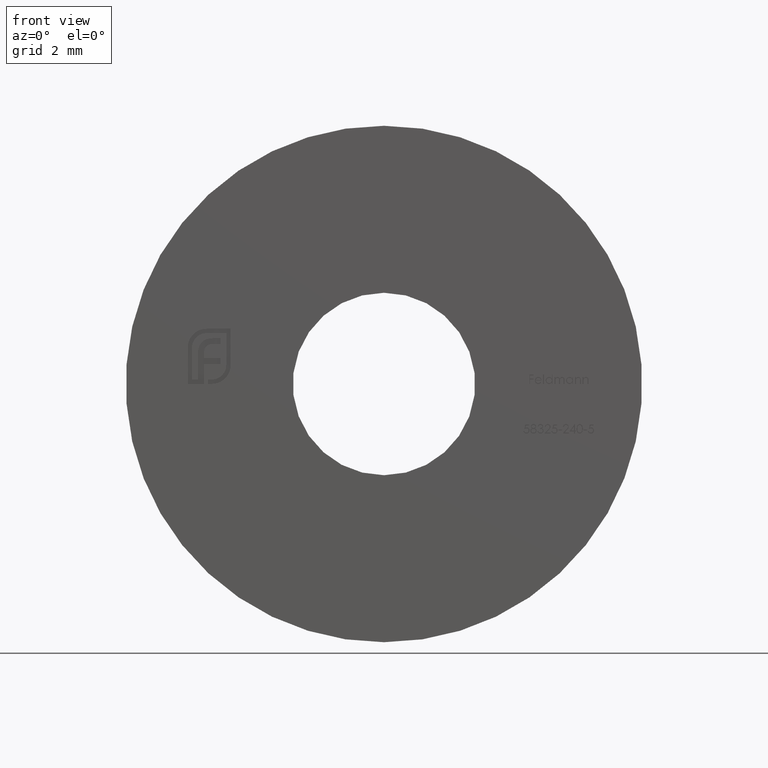
[diagram: clean part render]
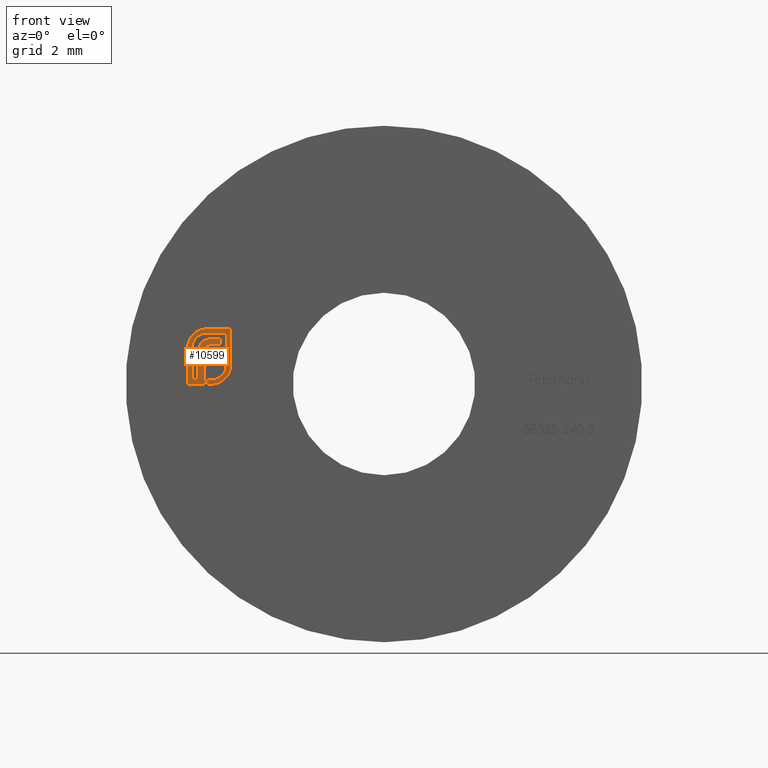
[diagram: same view with one face highlighted and labeled with its STEP entity id]
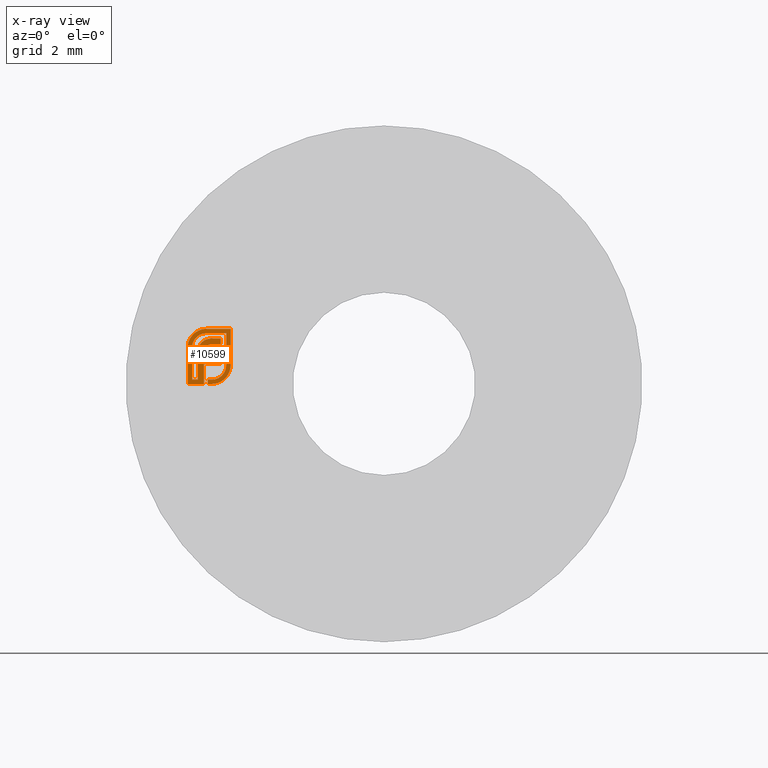
[diagram: x-ray of the same camera — body ghosted, the highlighted face saturated]
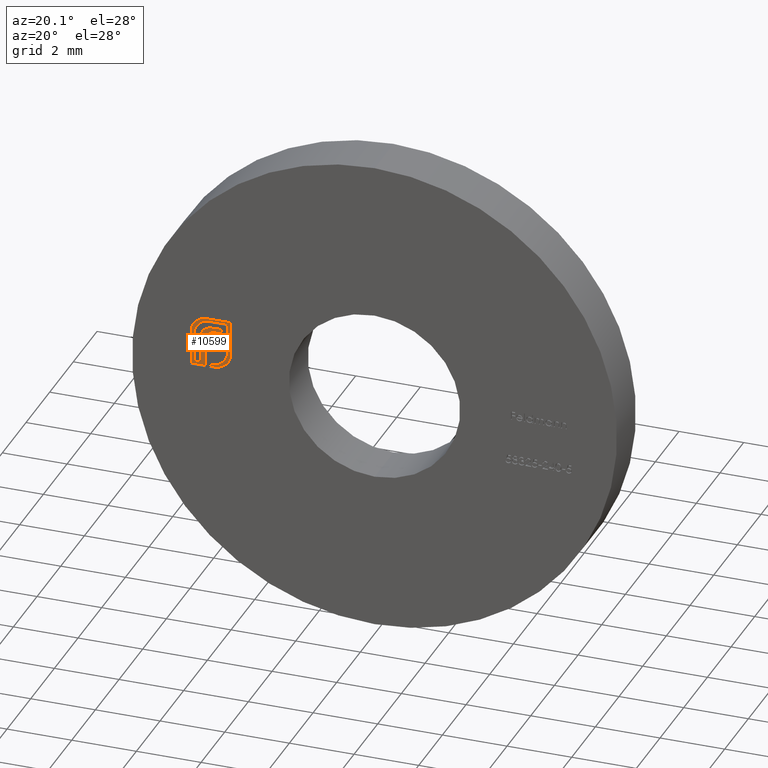
[diagram: same view with one face highlighted and labeled with its STEP entity id]
A machine part, front view. The second image highlights one B-rep face of the part: STEP entity #10599.
The next image is the same camera in x-ray: the body ghosted, the highlighted face saturated — about 0% of this face is hidden behind the body in this view.
A second angle (auxiliary view) of the same face is appended — the face is thin or edge-on in the first view.
In plain terms, the highlighted planar face has unit normal (0, -1, -0).
Its self-contained STEP definition (entity closure, byte-faithful):
#15 = DIRECTION ( 'NONE',  ( -1.000000000000000000, 0.000000000000000000, -0.000000000000000000 ) ) ;
#34 = VERTEX_POINT ( 'NONE', #3920 ) ;
#48 = CARTESIAN_POINT ( 'NONE',  ( -5.289778438918412817, -0.7000000000000000666, 1.211299028459141836 ) ) ;
#54 = ORIENTED_EDGE ( 'NONE', *, *, #14686, .F. ) ;
#75 = VERTEX_POINT ( 'NONE', #2722 ) ;
#121 = VERTEX_POINT ( 'NONE', #8012 ) ;
#127 = LINE ( 'NONE', #1314, #744 ) ;
#150 = CARTESIAN_POINT ( 'NONE',  ( -4.674883636297463063, -0.6999999999999999556, 0.1074186003092746922 ) ) ;
#186 = LINE ( 'NONE', #1586, #2623 ) ;
#216 = ORIENTED_EDGE ( 'NONE', *, *, #12218, .F. ) ;
#236 = VERTEX_POINT ( 'NONE', #5803 ) ;
#255 = VERTEX_POINT ( 'NONE', #13591 ) ;
#320 = EDGE_CURVE ( 'NONE', #10850, #12229, #10226, .T. ) ;
#393 = VERTEX_POINT ( 'NONE', #16132 ) ;
#440 = CARTESIAN_POINT ( 'NONE',  ( -5.435316693264055310, -0.6999999999999999556, 1.523333559948504279 ) ) ;
#467 = CARTESIAN_POINT ( 'NONE',  ( -5.184939207081660228, -0.6999999999999998446, 1.283653500213708387 ) ) ;
#480 = ORIENTED_EDGE ( 'NONE', *, *, #8513, .F. ) ;
#492 = CARTESIAN_POINT ( 'NONE',  ( -4.985512374280949288, -0.6999999999999997335, 0.1261960901823594161 ) ) ;
#517 = ORIENTED_EDGE ( 'NONE', *, *, #857, .F. ) ;
#522 = EDGE_CURVE ( 'NONE', #121, #4711, #7582, .T. ) ;
#528 = CARTESIAN_POINT ( 'NONE',  ( -4.457632379611204065, -0.6999999999999999556, 0.5419222793636445656 ) ) ;
#554 = CARTESIAN_POINT ( 'NONE',  ( -5.205213972911209019, -0.6999999999999996225, 1.031886629745971229 ) ) ;
#671 = CARTESIAN_POINT ( 'NONE',  ( -4.479463371907844049, -0.6999999999999999556, 0.3900684653002535751 ) ) ;
#691 = CARTESIAN_POINT ( 'NONE',  ( -5.371236155127012246, -0.7000000000000000666, 1.082394795951579836 ) ) ;
#702 = VERTEX_POINT ( 'NONE', #6258 ) ;
#744 = VECTOR ( 'NONE', #2963, 1000.000000000000000 ) ;
#771 = VECTOR ( 'NONE', #12137, 1000.000000000000000 ) ;
#786 = LINE ( 'NONE', #13267, #10723 ) ;
#823 = EDGE_CURVE ( 'NONE', #5929, #34, #2938, .T. ) ;
#842 = EDGE_CURVE ( 'NONE', #2837, #15081, #5120, .T. ) ;
#849 = CARTESIAN_POINT ( 'NONE',  ( -5.445805825038513071, -0.6999999999999999556, 1.516932920612097613 ) ) ;
#857 = EDGE_CURVE ( 'NONE', #9548, #10202, #5753, .T. ) ;
#932 = CARTESIAN_POINT ( 'NONE',  ( -5.559669394013216248, -0.7000000000000000666, 1.179011378935941323 ) ) ;
#952 = CARTESIAN_POINT ( 'NONE',  ( -5.594253941607431280, -0.6999999999999998446, 1.382098620695017210 ) ) ;
#989 = CARTESIAN_POINT ( 'NONE',  ( -5.159755617151660978, -0.6999999999999999556, 1.599441229733221004 ) ) ;
#1059 = CARTESIAN_POINT ( 'NONE',  ( -5.630085083542501145, -0.6999999999999999556, 1.323985473990325845 ) ) ;
#1062 = ORIENTED_EDGE ( 'NONE', *, *, #320, .F. ) ;
#1075 = CARTESIAN_POINT ( 'NONE',  ( -5.172717710570045924, -0.7000000000000000666, 1.599230417232471613 ) ) ;
#1126 = CARTESIAN_POINT ( 'NONE',  ( -5.057984667768796072, -0.6999999999999998446, 0.1258492497100406893 ) ) ;
#1242 = ORIENTED_EDGE ( 'NONE', *, *, #4611, .F. ) ;
#1271 = CARTESIAN_POINT ( 'NONE',  ( -5.162002925182196833, -0.6999999999999999556, 1.092191702840709988 ) ) ;
#1294 = B_SPLINE_CURVE_WITH_KNOTS ( 'NONE', 3,
 ( #11823, #5304, #9209, #13098, #1313, #10567, #15750, #15648, #7905, #2794, #5250 ),
 .UNSPECIFIED., .F., .F.,
 ( 4, 1, 1, 1, 1, 1, 1, 1, 4 ),
 ( 0.000000000000000000, 0.1255101535771534771, 0.2499629154941262477, 0.3729415475394176616, 0.4954949726337956606, 0.6195755186633576939, 0.7452592868548906235, 0.8712004049175032794, 1.000000000000000000 ),
 .UNSPECIFIED. ) ;
#1313 = CARTESIAN_POINT ( 'NONE',  ( -4.827313326663263737, -0.6999999999999997335, 0.02756506153526779371 ) ) ;
#1314 = CARTESIAN_POINT ( 'NONE',  ( -4.989762816841796678, -0.7000000000000000666, 0.5807686038914887661 ) ) ;
#1370 = CARTESIAN_POINT ( 'NONE',  ( -4.540140688732328123, -0.6999999999999999556, 0.2577983355029659363 ) ) ;
#1428 = CARTESIAN_POINT ( 'NONE',  ( -4.713569339138603986, -0.6999999999999999556, 0.08360693994947961116 ) ) ;
#1449 = ORIENTED_EDGE ( 'NONE', *, *, #16654, .F. ) ;
#1528 = CARTESIAN_POINT ( 'NONE',  ( -4.857653209046690179, -0.6999999999999998446, 1.161537207782977310 ) ) ;
#1586 = CARTESIAN_POINT ( 'NONE',  ( -4.808693998381432522, -0.7000000000000000666, 1.599441229733221226 ) ) ;
#1612 = VERTEX_POINT ( 'NONE', #671 ) ;
#1654 = CARTESIAN_POINT ( 'NONE',  ( -4.992953077213940105, -0.6999999999999996225, 1.325600196029595335 ) ) ;
#1731 = CARTESIAN_POINT ( 'NONE',  ( -5.323448849008137529, -0.6999999999999999556, 1.573834348125871418 ) ) ;
#1834 = LINE ( 'NONE', #13580, #4275 ) ;
#1835 = CARTESIAN_POINT ( 'NONE',  ( -4.717254778390183922, -0.7000000000000000666, 0.2374338926720715448 ) ) ;
#1883 = DIRECTION ( 'NONE',  ( -1.000000000000000000, 0.000000000000000000, 1.266417715819319016E-14 ) ) ;
#1910 = VERTEX_POINT ( 'NONE', #15490 ) ;
#1918 = LINE ( 'NONE', #13737, #11470 ) ;
#1926 = ORIENTED_EDGE ( 'NONE', *, *, #6909, .F. ) ;
#1941 = CARTESIAN_POINT ( 'NONE',  ( -5.701562880009459100, -0.6999999999999999556, 1.069516427972472927 ) ) ;
#2091 = CARTESIAN_POINT ( 'NONE',  ( -4.584566946025681489, -0.6999999999999999556, 0.5001136722652419486 ) ) ;
#2120 = CARTESIAN_POINT ( 'NONE',  ( -5.575481806332946100, -0.6999999999999999556, 1.071561235063475559 ) ) ;
#2169 = VECTOR ( 'NONE', #9169, 1000.000000000000000 ) ;
#2194 = CARTESIAN_POINT ( 'NONE',  ( -5.311609431215051913, -0.6999999999999999556, 1.577610237436581464 ) ) ;
#2247 = EDGE_CURVE ( 'NONE', #10523, #3096, #6740, .T. ) ;
#2279 = CARTESIAN_POINT ( 'NONE',  ( -4.490759304767193427, -0.6999999999999998446, 0.3550024720573106141 ) ) ;
#2490 = VERTEX_POINT ( 'NONE', #3169 ) ;
#2504 = CARTESIAN_POINT ( 'NONE',  ( -5.389703789125393385, -0.7000000000000002887, 1.022375544888747267 ) ) ;
#2558 = AXIS2_PLACEMENT_3D ( 'NONE', #16025, #8239, #10685 ) ;
#2623 = VECTOR ( 'NONE', #14532, 1000.000000000000000 ) ;
#2631 = CARTESIAN_POINT ( 'NONE',  ( -5.156017438870260428, -0.6999999999999999556, 1.097784446073585496 ) ) ;
#2666 = LINE ( 'NONE', #14921, #12219 ) ;
#2722 = CARTESIAN_POINT ( 'NONE',  ( -4.583481629321244810, -0.6999999999999999556, 0.5419222793636445656 ) ) ;
#2755 = CARTESIAN_POINT ( 'NONE',  ( -4.733088135354099002, -0.6999999999999999556, 0.07159281297280375989 ) ) ;
#2794 = CARTESIAN_POINT ( 'NONE',  ( -4.987557181371952808, -0.7000000000000001776, 0.0001150165058460374051 ) ) ;
#2818 = VECTOR ( 'NONE', #4858, 1000.000000000000000 ) ;
#2828 = CARTESIAN_POINT ( 'NONE',  ( -4.733088135354099002, -0.6999999999999999556, 0.07159281297280375989 ) ) ;
#2837 = VERTEX_POINT ( 'NONE', #4173 ) ;
#2856 = ORIENTED_EDGE ( 'NONE', *, *, #11506, .F. ) ;
#2938 = B_SPLINE_CURVE_WITH_KNOTS ( 'NONE', 3,
 ( #13347, #440, #14662, #9576, #9518, #1731, #10828 ),
 .UNSPECIFIED., .F., .F.,
 ( 4, 1, 1, 1, 4 ),
 ( 0.000000000000000000, 0.2494004055988064128, 0.4982698082868715628, 0.7477365097776036418, 1.000000000000000000 ),
 .UNSPECIFIED. ) ;
#2963 = DIRECTION ( 'NONE',  ( -1.000000000000000000, -7.617550170342183472E-15, 0.000000000000000000 ) ) ;
#3034 = LINE ( 'NONE', #7375, #15204 ) ;
#3039 = B_SPLINE_CURVE_WITH_KNOTS ( 'NONE', 3,
 ( #12293, #12402, #9643, #16066, #9746, #5901, #11113, #4598, #2091, #8503, #3219 ),
 .UNSPECIFIED., .F., .F.,
 ( 4, 1, 1, 1, 1, 1, 1, 1, 4 ),
 ( 0.000000000000000000, 0.1300684187865159269, 0.2563684206270608334, 0.3806087965304096321, 0.5030361388155298874, 0.6245546842700441248, 0.7464187435721217900, 0.8718075328738722485, 1.000000000000000000 ),
 .UNSPECIFIED. ) ;
#3059 = VERTEX_POINT ( 'NONE', #3364 ) ;
#3093 = CARTESIAN_POINT ( 'NONE',  ( -4.957840934440207015, -0.6999999999999996225, 0.1268795669436781903 ) ) ;
#3096 = VERTEX_POINT ( 'NONE', #9830 ) ;
#3169 = CARTESIAN_POINT ( 'NONE',  ( -4.936630034119828814, -0.6999999999999999556, 1.326232782020862144 ) ) ;
#3171 = CARTESIAN_POINT ( 'NONE',  ( -5.376460320096247081, -0.7000000000000000666, 1.068434446517896541 ) ) ;
#3213 = CARTESIAN_POINT ( 'NONE',  ( -5.423886615255509192, -0.6999999999999999556, 1.379267065142049775 ) ) ;
#3215 = CARTESIAN_POINT ( 'NONE',  ( -5.211044086141660259, -0.6999999999999999556, 1.015897038622937121 ) ) ;
#3219 = CARTESIAN_POINT ( 'NONE',  ( -4.583481629321244810, -0.6999999999999999556, 0.5419222793636445656 ) ) ;
#3289 = CARTESIAN_POINT ( 'NONE',  ( -5.317605999915277160, -0.6999999999999998446, 1.181912176841358741 ) ) ;
#3314 = CARTESIAN_POINT ( 'NONE',  ( -5.697385044406333421, -0.7000000000000001776, 1.128473651574875447 ) ) ;
#3343 = CARTESIAN_POINT ( 'NONE',  ( -5.159755617151660978, -0.6999999999999999556, 1.473591980023180481 ) ) ;
#3364 = CARTESIAN_POINT ( 'NONE',  ( -4.748177203559129644, -0.6999999999999999556, 0.5807686038914887661 ) ) ;
#3367 = CARTESIAN_POINT ( 'NONE',  ( -5.674112834980038045, -0.7000000000000000666, 1.229760282681161554 ) ) ;
#3369 = CARTESIAN_POINT ( 'NONE',  ( -4.476044004610622906, -0.6999999999999999556, 0.4024343631681113198 ) ) ;
#3382 = CARTESIAN_POINT ( 'NONE',  ( -4.748177203559129644, -0.6999999999999999556, 1.326232782020862144 ) ) ;
#3396 = EDGE_CURVE ( 'NONE', #9545, #75, #3039, .T. ) ;
#3440 = LINE ( 'NONE', #12467, #15000 ) ;
#3452 = CARTESIAN_POINT ( 'NONE',  ( -5.701677896515304766, -0.6999999999999999556, 0.000000000000000000 ) ) ;
#3501 = ORIENTED_EDGE ( 'NONE', *, *, #10378, .F. ) ;
#3549 = CARTESIAN_POINT ( 'NONE',  ( -4.707083571000748812, -0.6999999999999999556, 0.2472038833590084750 ) ) ;
#3576 = VECTOR ( 'NONE', #15, 1000.000000000000000 ) ;
#3584 = CARTESIAN_POINT ( 'NONE',  ( -5.545787971748742606, -0.6999999999999999556, 1.216368892259450663 ) ) ;
#3648 = LINE ( 'NONE', #5405, #15995 ) ;
#3686 = VERTEX_POINT ( 'NONE', #5315 ) ;
#3721 = VECTOR ( 'NONE', #7801, 1000.000000000000000 ) ;
#3730 = VERTEX_POINT ( 'NONE', #989 ) ;
#3800 = ORIENTED_EDGE ( 'NONE', *, *, #6184, .F. ) ;
#3915 = ORIENTED_EDGE ( 'NONE', *, *, #2247, .F. ) ;
#3920 = CARTESIAN_POINT ( 'NONE',  ( -5.311609431215051913, -0.6999999999999999556, 1.577610237436581464 ) ) ;
#3925 = CARTESIAN_POINT ( 'NONE',  ( -5.053851430378697884, -0.7000000000000002887, 1.152579111626905739 ) ) ;
#3952 = VERTEX_POINT ( 'NONE', #6878 ) ;
#4034 = B_SPLINE_CURVE_WITH_KNOTS ( 'NONE', 3,
 ( #1059, #7515, #952, #8774, #10080, #12505, #10024 ),
 .UNSPECIFIED., .F., .F.,
 ( 4, 1, 1, 1, 4 ),
 ( 0.000000000000000000, 0.2548261097762411498, 0.5042880443381970723, 0.7513476757168002784, 1.000000000000000000 ),
 .UNSPECIFIED. ) ;
#4113 = CARTESIAN_POINT ( 'NONE',  ( -5.289778438918412817, -0.7000000000000000666, 1.211299028459141836 ) ) ;
#4160 = DIRECTION ( 'NONE',  ( 1.000000000000000000, 0.000000000000000000, 0.000000000000000000 ) ) ;
#4173 = CARTESIAN_POINT ( 'NONE',  ( -5.214012053888897213, -0.6999999999999999556, 1.007757129693412468 ) ) ;
#4177 = DIRECTION ( 'NONE',  ( 1.000000000000000000, 0.000000000000000000, 0.000000000000000000 ) ) ;
#4244 = VECTOR ( 'NONE', #6459, 1000.000000000000000 ) ;
#4275 = VECTOR ( 'NONE', #7418, 1000.000000000000000 ) ;
#4279 = CARTESIAN_POINT ( 'NONE',  ( -5.096350282335944115, -0.6999999999999999556, 1.311784634543276873 ) ) ;
#4289 = CARTESIAN_POINT ( 'NONE',  ( -4.540140688732328123, -0.6999999999999999556, 0.2577983355029659363 ) ) ;
#4304 = CARTESIAN_POINT ( 'NONE',  ( -5.490270419642698130, -0.6999999999999998446, 0.1258492497100407170 ) ) ;
#4402 = CARTESIAN_POINT ( 'NONE',  ( -4.917249010705962320, -0.7000000000000000666, 0.1329877451365502061 ) ) ;
#4462 = CARTESIAN_POINT ( 'NONE',  ( -5.173794164491057224, -0.6999999999999998446, 1.473227550997893598 ) ) ;
#4472 = CARTESIAN_POINT ( 'NONE',  ( -5.298968547939801432, -0.7000000000000000666, 1.201593960516133652 ) ) ;
#4512 = ORIENTED_EDGE ( 'NONE', *, *, #842, .F. ) ;
#4531 = CARTESIAN_POINT ( 'NONE',  ( -5.454474013156296763, -0.6999999999999999556, 1.349990038343676257 ) ) ;
#4563 = CARTESIAN_POINT ( 'NONE',  ( -5.692297052289776005, -0.6999999999999997335, 1.163099442215776103 ) ) ;
#4598 = CARTESIAN_POINT ( 'NONE',  ( -4.590460099860104393, -0.6999999999999999556, 0.4593392032730171937 ) ) ;
#4611 = EDGE_CURVE ( 'NONE', #1612, #10282, #10695, .T. ) ;
#4653 = DIRECTION ( 'NONE',  ( 0.000000000000000000, -1.350845563540643396E-14, 1.000000000000000000 ) ) ;
#4711 = VERTEX_POINT ( 'NONE', #6049 ) ;
#4723 = ORIENTED_EDGE ( 'NONE', *, *, #10116, .F. ) ;
#4733 = CARTESIAN_POINT ( 'NONE',  ( -5.231085321758122575, -0.7000000000000000666, 0.9239734979632048262 ) ) ;
#4738 = CARTESIAN_POINT ( 'NONE',  ( -5.575828646805264022, -0.6999999999999999556, 1.057518950369576549 ) ) ;
#4787 = EDGE_CURVE ( 'NONE', #4711, #3686, #14479, .T. ) ;
#4819 = EDGE_CURVE ( 'NONE', #255, #9545, #5599, .T. ) ;
#4858 = DIRECTION ( 'NONE',  ( -5.707798155805711639E-14, 0.000000000000000000, -1.000000000000000000 ) ) ;
#4972 = EDGE_CURVE ( 'NONE', #14433, #1612, #11998, .T. ) ;
#5032 = EDGE_CURVE ( 'NONE', #14854, #7314, #2666, .T. ) ;
#5064 = CARTESIAN_POINT ( 'NONE',  ( -5.231348430124463711, -0.6999999999999999556, 0.8928233761316916040 ) ) ;
#5120 = B_SPLINE_CURVE_WITH_KNOTS ( 'NONE', 3,
 ( #15429, #15866, #5825, #14865, #4733, #12820, #5064 ),
 .UNSPECIFIED., .F., .F.,
 ( 4, 1, 1, 1, 4 ),
 ( 0.000000000000000000, 0.2296577939907745725, 0.4728894664265893000, 0.7276593582172837804, 1.000000000000000000 ),
 .UNSPECIFIED. ) ;
#5187 = CARTESIAN_POINT ( 'NONE',  ( -5.079815660065436056, -0.6999999999999999556, 1.144200831547410813 ) ) ;
#5250 = CARTESIAN_POINT ( 'NONE',  ( -4.999554658974848742, -0.6999999999999999556, 0.000000000000000000 ) ) ;
#5304 = CARTESIAN_POINT ( 'NONE',  ( -4.743300751584196284, -0.6999999999999999556, 0.06591342503123399921 ) ) ;
#5315 = CARTESIAN_POINT ( 'NONE',  ( -5.079815660065436056, -0.6999999999999999556, 1.144200831547410813 ) ) ;
#5405 = CARTESIAN_POINT ( 'NONE',  ( -4.842403618839478341, -0.6999999999999997335, 1.326232782020861922 ) ) ;
#5434 = CARTESIAN_POINT ( 'NONE',  ( -5.404712192480132238, -0.6999999999999999556, 0.1258492497100406893 ) ) ;
#5479 = ORIENTED_EDGE ( 'NONE', *, *, #3396, .F. ) ;
#5518 = ORIENTED_EDGE ( 'NONE', *, *, #16163, .F. ) ;
#5525 = ORIENTED_EDGE ( 'NONE', *, *, #9250, .F. ) ;
#5541 = ORIENTED_EDGE ( 'NONE', *, *, #4819, .F. ) ;
#5587 = DIRECTION ( 'NONE',  ( 8.531656190782985480E-14, 1.066457023847873185E-14, -1.000000000000000000 ) ) ;
#5597 = CARTESIAN_POINT ( 'NONE',  ( -5.142419240916093592, -0.6999999999999999556, 1.297980909636975655 ) ) ;
#5599 = B_SPLINE_CURVE_WITH_KNOTS ( 'NONE', 3,
 ( #8257, #492, #3093, #4402, #13459, #12235, #16053, #13516, #9630, #1835, #3549 ),
 .UNSPECIFIED., .F., .F.,
 ( 4, 1, 1, 1, 1, 1, 1, 1, 4 ),
 ( 0.000000000000000000, 0.1294153089051528205, 0.2550231684446454539, 0.3778159505448303590, 0.4995652956731370109, 0.6218454371786017454, 0.7445549121012178251, 0.8700852119793848205, 1.000000000000000000 ),
 .UNSPECIFIED. ) ;
#5634 = CARTESIAN_POINT ( 'NONE',  ( -5.454474013156296763, -0.6999999999999999556, 1.349990038343676257 ) ) ;
#5649 = CARTESIAN_POINT ( 'NONE',  ( -4.955804379730009757, -0.6999999999999998446, 1.326017427491732015 ) ) ;
#5707 = B_SPLINE_CURVE_WITH_KNOTS ( 'NONE', 3,
 ( #9163, #13005, #10583, #7817, #9099, #2631, #1271 ),
 .UNSPECIFIED., .F., .F.,
 ( 4, 1, 1, 1, 4 ),
 ( 0.000000000000000000, 0.2524546485597168877, 0.5031396088336632655, 0.7494862726423848764, 1.000000000000000000 ),
 .UNSPECIFIED. ) ;
#5753 = LINE ( 'NONE', #4304, #13023 ) ;
#5794 = CARTESIAN_POINT ( 'NONE',  ( -5.281596629677220989, -0.6999999999999996225, 1.456932225505422673 ) ) ;
#5803 = CARTESIAN_POINT ( 'NONE',  ( -5.142419240916093592, -0.6999999999999999556, 1.297980909636975655 ) ) ;
#5825 = CARTESIAN_POINT ( 'NONE',  ( -5.222551012260934655, -0.6999999999999998446, 0.9817358449586573999 ) ) ;
#5837 = CARTESIAN_POINT ( 'NONE',  ( -5.231348430124463711, -0.6999999999999999556, 0.7432168700988371901 ) ) ;
#5874 = CARTESIAN_POINT ( 'NONE',  ( -4.469232291559656289, -0.6999999999999999556, 0.4270684374197538657 ) ) ;
#5901 = CARTESIAN_POINT ( 'NONE',  ( -4.613746932003213175, -0.6999999999999999556, 0.3823502978803169361 ) ) ;
#5907 = CARTESIAN_POINT ( 'NONE',  ( -5.361020809703639145, -0.6999999999999997335, 1.109692898621747137 ) ) ;
#5929 = VERTEX_POINT ( 'NONE', #849 ) ;
#5930 = CARTESIAN_POINT ( 'NONE',  ( -4.458262452218553662, -0.6999999999999996225, 0.5031814078887971720 ) ) ;
#5964 = CARTESIAN_POINT ( 'NONE',  ( -5.444178787458388236, -0.7000000000000000666, 1.359844214224561920 ) ) ;
#5997 = CARTESIAN_POINT ( 'NONE',  ( -4.505171492156288870, -0.7000000000000000666, 0.3213677949570484804 ) ) ;
#6049 = CARTESIAN_POINT ( 'NONE',  ( -4.967129214534251602, -0.6999999999999999556, 1.161537207782977532 ) ) ;
#6051 = CARTESIAN_POINT ( 'NONE',  ( -5.529020143618221361, -0.6999999999999998446, 1.252509509407138566 ) ) ;
#6108 = CARTESIAN_POINT ( 'NONE',  ( -4.748177203559128756, -0.7000000000000000666, 1.243884994901919727 ) ) ;
#6184 = EDGE_CURVE ( 'NONE', #7314, #9278, #6797, .T. ) ;
#6185 = EDGE_CURVE ( 'NONE', #1910, #11542, #1834, .T. ) ;
#6258 = CARTESIAN_POINT ( 'NONE',  ( -5.575828646805264022, -0.6999999999999999556, 1.057518950369576549 ) ) ;
#6426 = DIRECTION ( 'NONE',  ( 0.000000000000000000, 0.000000000000000000, 1.000000000000000000 ) ) ;
#6459 = DIRECTION ( 'NONE',  ( 0.000000000000000000, 0.000000000000000000, 1.000000000000000000 ) ) ;
#6639 = ORIENTED_EDGE ( 'NONE', *, *, #6992, .F. ) ;
#6680 = B_SPLINE_CURVE_WITH_KNOTS ( 'NONE', 3,
 ( #2194, #7428, #8888, #12687, #8680, #1075, #16474 ),
 .UNSPECIFIED., .F., .F.,
 ( 4, 1, 1, 1, 4 ),
 ( 0.000000000000000000, 0.2498987543963744062, 0.4978226843676620827, 0.7474950417136813074, 1.000000000000000000 ),
 .UNSPECIFIED. ) ;
#6717 = EDGE_CURVE ( 'NONE', #3096, #3952, #3034, .T. ) ;
#6740 = LINE ( 'NONE', #14000, #11596 ) ;
#6797 = B_SPLINE_CURVE_WITH_KNOTS ( 'NONE', 3,
 ( #3343, #4462, #11108, #13523, #5794, #8385, #7083, #16122, #3213, #5964, #4531 ),
 .UNSPECIFIED., .F., .F.,
 ( 4, 1, 1, 1, 1, 1, 1, 1, 4 ),
 ( 0.000000000000000000, 0.1281924671261265580, 0.2535812564278782100, 0.3754453157299565969, 0.4969638611844700571, 0.6193912034695919777, 0.7436315793729405543, 0.8699315812134853498, 1.000000000000000000 ),
 .UNSPECIFIED. ) ;
#6829 = DIRECTION ( 'NONE',  ( 0.000000000000000000, -1.164522037535058187E-14, -1.000000000000000000 ) ) ;
#6878 = CARTESIAN_POINT ( 'NONE',  ( -5.116414676562744290, -0.6999999999999999556, 0.1258492497100406893 ) ) ;
#6909 = EDGE_CURVE ( 'NONE', #3686, #15291, #5707, .T. ) ;
#6934 = CARTESIAN_POINT ( 'NONE',  ( -5.142419240916093592, -0.6999999999999999556, 1.297980909636975655 ) ) ;
#6992 = EDGE_CURVE ( 'NONE', #10282, #7361, #12946, .T. ) ;
#6999 = CARTESIAN_POINT ( 'NONE',  ( -5.259298898095822850, -0.7000000000000000666, 1.240004344986883833 ) ) ;
#7055 = LINE ( 'NONE', #16139, #771 ) ;
#7083 = CARTESIAN_POINT ( 'NONE',  ( -5.355841343482775407, -0.6999999999999998446, 1.426051892757331352 ) ) ;
#7154 = CARTESIAN_POINT ( 'NONE',  ( -5.404712192480132238, -0.6999999999999999556, 0.8645715037478048925 ) ) ;
#7273 = CARTESIAN_POINT ( 'NONE',  ( -4.479463371907844049, -0.6999999999999999556, 0.3900684653002535751 ) ) ;
#7279 = CARTESIAN_POINT ( 'NONE',  ( -4.483242496549886269, -0.6999999999999999556, 0.3783369190161068318 ) ) ;
#7292 = CARTESIAN_POINT ( 'NONE',  ( -4.457632379611204065, -0.7000000000000000666, 1.070681754548432840 ) ) ;
#7293 = VERTEX_POINT ( 'NONE', #12533 ) ;
#7314 = VERTEX_POINT ( 'NONE', #16719 ) ;
#7361 = VERTEX_POINT ( 'NONE', #2828 ) ;
#7375 = CARTESIAN_POINT ( 'NONE',  ( -5.116414676562744290, -0.6999999999999997335, 0.06292462485502033076 ) ) ;
#7409 = EDGE_CURVE ( 'NONE', #2490, #15544, #3648, .T. ) ;
#7418 = DIRECTION ( 'NONE',  ( 6.484058704995057757E-14, -8.105073381243822196E-15, -1.000000000000000000 ) ) ;
#7428 = CARTESIAN_POINT ( 'NONE',  ( -5.299243533347195445, -0.7000000000000000666, 1.581029604733803051 ) ) ;
#7515 = CARTESIAN_POINT ( 'NONE',  ( -5.618056970960664032, -0.6999999999999998446, 1.343493405730694867 ) ) ;
#7545 = ORIENTED_EDGE ( 'NONE', *, *, #9128, .F. ) ;
#7582 = LINE ( 'NONE', #1528, #3721 ) ;
#7585 = VERTEX_POINT ( 'NONE', #7154 ) ;
#7617 = CARTESIAN_POINT ( 'NONE',  ( -4.967129214534251602, -0.6999999999999999556, 1.161537207782977532 ) ) ;
#7750 = EDGE_CURVE ( 'NONE', #8908, #9657, #3440, .T. ) ;
#7795 = ORIENTED_EDGE ( 'NONE', *, *, #4972, .F. ) ;
#7801 = DIRECTION ( 'NONE',  ( -1.000000000000000000, 1.608149480405708171E-14, -1.608149480405708171E-14 ) ) ;
#7817 = CARTESIAN_POINT ( 'NONE',  ( -5.124254717770562628, -0.6999999999999998446, 1.123169033678045325 ) ) ;
#7896 = CARTESIAN_POINT ( 'NONE',  ( -5.575828646805263134, -0.7000000000000000666, 0.5916841000398085360 ) ) ;
#7905 = CARTESIAN_POINT ( 'NONE',  ( -4.963828488758075252, -0.6999999999999999556, 0.0003424969315718466491 ) ) ;
#7919 = CARTESIAN_POINT ( 'NONE',  ( -4.552578274225762556, -0.7000000000000000666, 0.2388917981688750136 ) ) ;
#8012 = CARTESIAN_POINT ( 'NONE',  ( -4.748177203559130533, -0.7000000000000000666, 1.161537207782977754 ) ) ;
#8126 = ORIENTED_EDGE ( 'NONE', *, *, #8422, .F. ) ;
#8141 = ORIENTED_EDGE ( 'NONE', *, *, #522, .F. ) ;
#8239 = DIRECTION ( 'NONE',  ( 3.019787241149960853E-14, -1.000000000000000000, -1.092084510402302816E-13 ) ) ;
#8257 = CARTESIAN_POINT ( 'NONE',  ( -4.999554658974848742, -0.6999999999999999556, 0.1258492497100406893 ) ) ;
#8338 = ORIENTED_EDGE ( 'NONE', *, *, #11942, .F. ) ;
#8385 = CARTESIAN_POINT ( 'NONE',  ( -5.319327598634989052, -0.7000000000000001776, 1.443326677341211228 ) ) ;
#8422 = EDGE_CURVE ( 'NONE', #15544, #121, #11955, .T. ) ;
#8503 = CARTESIAN_POINT ( 'NONE',  ( -4.583846058346529695, -0.6999999999999998446, 0.5278837320242464326 ) ) ;
#8513 = EDGE_CURVE ( 'NONE', #15291, #2837, #13965, .T. ) ;
#8601 = CARTESIAN_POINT ( 'NONE',  ( -5.568690151378755893, -0.6999999999999999556, 1.139824598638464526 ) ) ;
#8631 = ORIENTED_EDGE ( 'NONE', *, *, #13669, .F. ) ;
#8675 = EDGE_CURVE ( 'NONE', #702, #9548, #12375, .T. ) ;
#8680 = CARTESIAN_POINT ( 'NONE',  ( -5.198496488626508594, -0.6999999999999999556, 1.598811157125869853 ) ) ;
#8686 = LINE ( 'NONE', #1126, #2169 ) ;
#8749 = CARTESIAN_POINT ( 'NONE',  ( -5.483454258255524572, -0.6999999999999999556, 1.319819683780802055 ) ) ;
#8772 = ORIENTED_EDGE ( 'NONE', *, *, #16258, .F. ) ;
#8774 = CARTESIAN_POINT ( 'NONE',  ( -5.550166541872976644, -0.6999999999999997335, 1.433450223188046380 ) ) ;
#8888 = CARTESIAN_POINT ( 'NONE',  ( -5.274609459095552566, -0.7000000000000000666, 1.587841317784768114 ) ) ;
#8908 = VERTEX_POINT ( 'NONE', #5837 ) ;
#9099 = CARTESIAN_POINT ( 'NONE',  ( -5.144146029260740605, -0.7000000000000000666, 1.108876902441904067 ) ) ;
#9128 = EDGE_CURVE ( 'NONE', #236, #2490, #12226, .T. ) ;
#9163 = CARTESIAN_POINT ( 'NONE',  ( -5.079815660065436056, -0.6999999999999999556, 1.144200831547410813 ) ) ;
#9169 = DIRECTION ( 'NONE',  ( 1.000000000000000000, -1.489903195081494132E-14, 0.000000000000000000 ) ) ;
#9209 = CARTESIAN_POINT ( 'NONE',  ( -4.763639945306310075, -0.7000000000000000666, 0.05460249657137608570 ) ) ;
#9250 = EDGE_CURVE ( 'NONE', #3730, #393, #186, .T. ) ;
#9278 = VERTEX_POINT ( 'NONE', #13155 ) ;
#9305 = DIRECTION ( 'NONE',  ( 0.000000000000000000, 3.926876638199530135E-15, -1.000000000000000000 ) ) ;
#9445 = CARTESIAN_POINT ( 'NONE',  ( -5.127406853226308847, -0.7000000000000000666, 1.302479098357608445 ) ) ;
#9518 = CARTESIAN_POINT ( 'NONE',  ( -5.346996423624902128, -0.7000000000000001776, 1.566324431942282436 ) ) ;
#9545 = VERTEX_POINT ( 'NONE', #9851 ) ;
#9548 = VERTEX_POINT ( 'NONE', #14929 ) ;
#9564 = ORIENTED_EDGE ( 'NONE', *, *, #16080, .F. ) ;
#9576 = CARTESIAN_POINT ( 'NONE',  ( -5.381020339068992797, -0.7000000000000000666, 1.551828885681314052 ) ) ;
#9630 = CARTESIAN_POINT ( 'NONE',  ( -4.737253925563623014, -0.7000000000000000666, 0.2182236382597804170 ) ) ;
#9640 = CARTESIAN_POINT ( 'NONE',  ( -5.178956643076359612, -0.6999999999999996225, 1.074381670838818081 ) ) ;
#9643 = CARTESIAN_POINT ( 'NONE',  ( -4.677806544202375072, -0.6999999999999999556, 0.2777912812597954639 ) ) ;
#9657 = VERTEX_POINT ( 'NONE', #16433 ) ;
#9717 = CARTESIAN_POINT ( 'NONE',  ( -5.701677896515304766, -0.6999999999999999556, 1.057518950369576549 ) ) ;
#9746 = CARTESIAN_POINT ( 'NONE',  ( -4.631021716587094161, -0.6999999999999998446, 0.3458365530325296366 ) ) ;
#9830 = CARTESIAN_POINT ( 'NONE',  ( -5.116414676562744290, -0.6999999999999999556, 0.000000000000000000 ) ) ;
#9851 = CARTESIAN_POINT ( 'NONE',  ( -4.707083571000748812, -0.6999999999999999556, 0.2472038833590084750 ) ) ;
#9872 = LINE ( 'NONE', #15576, #3576 ) ;
#9890 = CARTESIAN_POINT ( 'NONE',  ( -4.520967592918860412, -0.6999999999999998446, 0.2885932513837417002 ) ) ;
#9894 = ORIENTED_EDGE ( 'NONE', *, *, #4787, .F. ) ;
#9970 = ORIENTED_EDGE ( 'NONE', *, *, #6185, .F. ) ;
#9980 = ORIENTED_EDGE ( 'NONE', *, *, #8675, .F. ) ;
#9998 = CARTESIAN_POINT ( 'NONE',  ( -5.404712192480132238, -0.6999999999999999556, 0.8645715037478048925 ) ) ;
#10024 = CARTESIAN_POINT ( 'NONE',  ( -5.445805825038513071, -0.6999999999999999556, 1.516932920612097613 ) ) ;
#10059 = CARTESIAN_POINT ( 'NONE',  ( -5.574798329571626354, -0.6999999999999999556, 1.099232674904216722 ) ) ;
#10065 = DIRECTION ( 'NONE',  ( 0.000000000000000000, 0.000000000000000000, -1.000000000000000000 ) ) ;
#10080 = CARTESIAN_POINT ( 'NONE',  ( -5.501425881498483328, -0.7000000000000000666, 1.479653096829023351 ) ) ;
#10106 = DIRECTION ( 'NONE',  ( -1.000000000000000000, -1.489903195081138829E-14, -0.000000000000000000 ) ) ;
#10116 = EDGE_CURVE ( 'NONE', #75, #14854, #15970, .T. ) ;
#10135 = VECTOR ( 'NONE', #10065, 1000.000000000000000 ) ;
#10139 = B_SPLINE_CURVE_WITH_KNOTS ( 'NONE', 3,
 ( #5634, #15138, #8749, #12489, #6051, #3584, #932, #8601, #10059, #2120, #4738 ),
 .UNSPECIFIED., .F., .F.,
 ( 4, 1, 1, 1, 1, 1, 1, 1, 4 ),
 ( 0.000000000000000000, 0.1299147880206164840, 0.2554450878987845619, 0.3781545628213986987, 0.5004347043268636552, 0.6221840494551688083, 0.7449768315553536580, 0.8705846910948467077, 1.000000000000000000 ),
 .UNSPECIFIED. ) ;
#10202 = VERTEX_POINT ( 'NONE', #5434 ) ;
#10226 = B_SPLINE_CURVE_WITH_KNOTS ( 'NONE', 3,
 ( #3171, #691, #5907, #12254, #3289, #4472, #14957 ),
 .UNSPECIFIED., .F., .F.,
 ( 4, 1, 1, 1, 4 ),
 ( 0.000000000000000000, 0.2650465622674555988, 0.5182727197139306297, 0.7624607574988784275, 1.000000000000000000 ),
 .UNSPECIFIED. ) ;
#10231 = CARTESIAN_POINT ( 'NONE',  ( -5.398473847680424598, -0.6999999999999998446, 0.9731547829876808775 ) ) ;
#10282 = VERTEX_POINT ( 'NONE', #4289 ) ;
#10378 = EDGE_CURVE ( 'NONE', #393, #14433, #13767, .T. ) ;
#10382 = CARTESIAN_POINT ( 'NONE',  ( -5.026261722086799111, -0.6999999999999999556, 1.157739626296802493 ) ) ;
#10523 = VERTEX_POINT ( 'NONE', #15700 ) ;
#10524 = LINE ( 'NONE', #15516, #10939 ) ;
#10558 = EDGE_CURVE ( 'NONE', #9657, #3059, #786, .T. ) ;
#10567 = CARTESIAN_POINT ( 'NONE',  ( -4.860277366516110753, -0.7000000000000001776, 0.01765961787323672150 ) ) ;
#10583 = CARTESIAN_POINT ( 'NONE',  ( -5.102774572488283589, -0.6999999999999998446, 1.135072335159098333 ) ) ;
#10599 = ADVANCED_FACE ( 'NONE', ( #14976 ), #15863, .T. ) ;
#10674 = EDGE_CURVE ( 'NONE', #15617, #7293, #15312, .T. ) ;
#10685 = DIRECTION ( 'NONE',  ( 0.000000000000000000, 1.092084510402302816E-13, -1.000000000000000000 ) ) ;
#10695 = B_SPLINE_CURVE_WITH_KNOTS ( 'NONE', 3,
 ( #15188, #7279, #2279, #5997, #9890, #16275, #13779 ),
 .UNSPECIFIED., .F., .F.,
 ( 4, 1, 1, 1, 4 ),
 ( 0.000000000000000000, 0.2531688454537558974, 0.5035614958825505028, 0.7514299623983482501, 1.000000000000000000 ),
 .UNSPECIFIED. ) ;
#10723 = VECTOR ( 'NONE', #5587, 1000.000000000000000 ) ;
#10771 = EDGE_CURVE ( 'NONE', #10202, #7585, #10524, .T. ) ;
#10828 = CARTESIAN_POINT ( 'NONE',  ( -5.311609431215051913, -0.6999999999999999556, 1.577610237436581464 ) ) ;
#10850 = VERTEX_POINT ( 'NONE', #15357 ) ;
#10868 = ORIENTED_EDGE ( 'NONE', *, *, #6717, .F. ) ;
#10936 = CARTESIAN_POINT ( 'NONE',  ( -5.214012053888897213, -0.6999999999999999556, 1.007757129693412468 ) ) ;
#10939 = VECTOR ( 'NONE', #6426, 1000.000000000000000 ) ;
#11032 = CARTESIAN_POINT ( 'NONE',  ( -5.661916184660610973, -0.6999999999999998446, 1.262008582096644016 ) ) ;
#11090 = CARTESIAN_POINT ( 'NONE',  ( -4.457843192111954345, -0.6999999999999999556, 0.5289601859452608412 ) ) ;
#11108 = CARTESIAN_POINT ( 'NONE',  ( -5.201564224250060597, -0.6999999999999996225, 1.472506663318744691 ) ) ;
#11113 = CARTESIAN_POINT ( 'NONE',  ( -4.600141383839001286, -0.6999999999999999556, 0.4200812668380816683 ) ) ;
#11410 = ORIENTED_EDGE ( 'NONE', *, *, #5032, .F. ) ;
#11421 = CARTESIAN_POINT ( 'NONE',  ( -5.162002925182196833, -0.6999999999999999556, 1.092191702840709988 ) ) ;
#11424 = ORIENTED_EDGE ( 'NONE', *, *, #10674, .F. ) ;
#11448 = CARTESIAN_POINT ( 'NONE',  ( -4.583481629321244810, -0.6999999999999999556, 1.473591980023180481 ) ) ;
#11470 = VECTOR ( 'NONE', #6829, 1000.000000000000000 ) ;
#11506 = EDGE_CURVE ( 'NONE', #12229, #236, #16591, .T. ) ;
#11542 = VERTEX_POINT ( 'NONE', #14565 ) ;
#11583 = CARTESIAN_POINT ( 'NONE',  ( -5.380781015508286025, -0.7000000000000000666, 1.053407682418954439 ) ) ;
#11596 = VECTOR ( 'NONE', #10106, 1000.000000000000000 ) ;
#11823 = CARTESIAN_POINT ( 'NONE',  ( -4.733088135354099002, -0.6999999999999999556, 0.07159281297280375989 ) ) ;
#11847 = ORIENTED_EDGE ( 'NONE', *, *, #10558, .F. ) ;
#11850 = CARTESIAN_POINT ( 'NONE',  ( -4.457632379611204065, -0.6999999999999999556, 0.5419222793636445656 ) ) ;
#11942 = EDGE_CURVE ( 'NONE', #12101, #15617, #7055, .T. ) ;
#11955 = LINE ( 'NONE', #6108, #10135 ) ;
#11998 = B_SPLINE_CURVE_WITH_KNOTS ( 'NONE', 3,
 ( #528, #11090, #5930, #15027, #5874, #3369, #7273 ),
 .UNSPECIFIED., .F., .F.,
 ( 4, 1, 1, 1, 4 ),
 ( 0.000000000000000000, 0.2525049582863186370, 0.5021773156323380283, 0.7501012456036260101, 1.000000000000000000 ),
 .UNSPECIFIED. ) ;
#12101 = VERTEX_POINT ( 'NONE', #3452 ) ;
#12137 = DIRECTION ( 'NONE',  ( 5.707798155805537459E-14, 7.134747694756921824E-15, 1.000000000000000000 ) ) ;
#12218 = EDGE_CURVE ( 'NONE', #3952, #255, #8686, .T. ) ;
#12219 = VECTOR ( 'NONE', #1883, 1000.000000000000000 ) ;
#12226 = B_SPLINE_CURVE_WITH_KNOTS ( 'NONE', 3,
 ( #5597, #9445, #4279, #16103, #1654, #5649, #14637 ),
 .UNSPECIFIED., .F., .F.,
 ( 4, 1, 1, 1, 4 ),
 ( 0.000000000000000000, 0.2252149288326738552, 0.4659087912857254321, 0.7243281698455822371, 0.9999999999999998890 ),
 .UNSPECIFIED. ) ;
#12229 = VERTEX_POINT ( 'NONE', #48 ) ;
#12235 = CARTESIAN_POINT ( 'NONE',  ( -4.840704717084975073, -0.7000000000000001776, 0.1558899247665636312 ) ) ;
#12254 = CARTESIAN_POINT ( 'NONE',  ( -5.340244722378531428, -0.7000000000000001776, 1.147229309736004899 ) ) ;
#12293 = CARTESIAN_POINT ( 'NONE',  ( -4.707083571000748812, -0.6999999999999999556, 0.2472038833590084750 ) ) ;
#12317 = CARTESIAN_POINT ( 'NONE',  ( -5.635764471484072224, -0.6999999999999999556, 1.313772857760228785 ) ) ;
#12375 = LINE ( 'NONE', #7896, #13564 ) ;
#12402 = CARTESIAN_POINT ( 'NONE',  ( -4.697229395119863149, -0.6999999999999997335, 0.2574991090569173635 ) ) ;
#12428 = CARTESIAN_POINT ( 'NONE',  ( -5.647075399943932261, -0.7000000000000001776, 1.293433664038116770 ) ) ;
#12467 = CARTESIAN_POINT ( 'NONE',  ( -4.989762816841796678, -0.6999999999999999556, 0.7432168700988373011 ) ) ;
#12489 = CARTESIAN_POINT ( 'NONE',  ( -5.507674219774742141, -0.6999999999999997335, 1.286621208712525943 ) ) ;
#12505 = CARTESIAN_POINT ( 'NONE',  ( -5.464385513355309421, -0.7000000000000000666, 1.504479723861154250 ) ) ;
#12533 = CARTESIAN_POINT ( 'NONE',  ( -5.630085083542501145, -0.6999999999999999556, 1.323985473990325845 ) ) ;
#12630 = EDGE_CURVE ( 'NONE', #7361, #10523, #1294, .T. ) ;
#12687 = CARTESIAN_POINT ( 'NONE',  ( -5.236766140896418342, -0.6999999999999996225, 1.594334467525990284 ) ) ;
#12765 = ORIENTED_EDGE ( 'NONE', *, *, #823, .F. ) ;
#12820 = CARTESIAN_POINT ( 'NONE',  ( -5.231258799758587763, -0.6999999999999999556, 0.9034349612199553681 ) ) ;
#12924 = CARTESIAN_POINT ( 'NONE',  ( -4.997178557037527113, -0.7000000000000000666, 1.161105721189783280 ) ) ;
#12925 = CARTESIAN_POINT ( 'NONE',  ( -5.403541406140801584, -0.7000000000000002887, 0.9201129186135341698 ) ) ;
#12946 = B_SPLINE_CURVE_WITH_KNOTS ( 'NONE', 3,
 ( #1370, #7919, #14366, #16790, #150, #1428, #2755 ),
 .UNSPECIFIED., .F., .F.,
 ( 4, 1, 1, 1, 4 ),
 ( 0.000000000000000000, 0.2502112839297328528, 0.4976763372912441641, 0.7465535718222457984, 1.000000000000000000 ),
 .UNSPECIFIED. ) ;
#12970 = CARTESIAN_POINT ( 'NONE',  ( -5.071301646725626888, -0.7000000000000000666, 1.146948180081224455 ) ) ;
#13005 = CARTESIAN_POINT ( 'NONE',  ( -5.087486555007144418, -0.6999999999999998446, 1.141150872756643508 ) ) ;
#13023 = VECTOR ( 'NONE', #4177, 1000.000000000000000 ) ;
#13098 = CARTESIAN_POINT ( 'NONE',  ( -4.795065027247781941, -0.7000000000000001776, 0.03976171185469321023 ) ) ;
#13155 = CARTESIAN_POINT ( 'NONE',  ( -5.454474013156296763, -0.6999999999999999556, 1.349990038343676257 ) ) ;
#13267 = CARTESIAN_POINT ( 'NONE',  ( -4.748177203559130533, -0.6999999999999998446, 0.6619927369951629226 ) ) ;
#13347 = CARTESIAN_POINT ( 'NONE',  ( -5.445805825038513071, -0.6999999999999999556, 1.516932920612097613 ) ) ;
#13420 = ORIENTED_EDGE ( 'NONE', *, *, #12630, .F. ) ;
#13459 = CARTESIAN_POINT ( 'NONE',  ( -4.878062230408483302, -0.6999999999999998446, 0.1420085025020887681 ) ) ;
#13516 = CARTESIAN_POINT ( 'NONE',  ( -4.770452400631897127, -0.6999999999999997335, 0.1940036767405626528 ) ) ;
#13523 = CARTESIAN_POINT ( 'NONE',  ( -5.242338693242288628, -0.6999999999999999556, 1.466613509484319788 ) ) ;
#13564 = VECTOR ( 'NONE', #9305, 1000.000000000000000 ) ;
#13580 = CARTESIAN_POINT ( 'NONE',  ( -5.231348430124463711, -0.6999999999999999556, 0.3533089268007647554 ) ) ;
#13591 = CARTESIAN_POINT ( 'NONE',  ( -4.999554658974848742, -0.6999999999999999556, 0.1258492497100406893 ) ) ;
#13613 = CARTESIAN_POINT ( 'NONE',  ( -5.630085083542501145, -0.6999999999999999556, 1.323985473990325845 ) ) ;
#13644 = CARTESIAN_POINT ( 'NONE',  ( -5.162002925182196833, -0.6999999999999999556, 1.092191702840709988 ) ) ;
#13669 = EDGE_CURVE ( 'NONE', #3059, #1910, #127, .T. ) ;
#13737 = CARTESIAN_POINT ( 'NONE',  ( -5.231348430124463711, -0.7000000000000000666, 0.8180201231152642860 ) ) ;
#13767 = LINE ( 'NONE', #7292, #2818 ) ;
#13779 = CARTESIAN_POINT ( 'NONE',  ( -4.540140688732328123, -0.6999999999999999556, 0.2577983355029659363 ) ) ;
#13877 = DIRECTION ( 'NONE',  ( 1.000000000000000000, -7.560702781011642585E-15, 7.560702781011642585E-15 ) ) ;
#13924 = EDGE_CURVE ( 'NONE', #11542, #12101, #9872, .T. ) ;
#13965 = B_SPLINE_CURVE_WITH_KNOTS ( 'NONE', 3,
 ( #13644, #14893, #9640, #16174, #554, #3215, #10936 ),
 .UNSPECIFIED., .F., .F.,
 ( 4, 1, 1, 1, 4 ),
 ( 0.000000000000000000, 0.2455891591026250487, 0.4905057002791301524, 0.7406289399192076406, 1.000000000000000000 ),
 .UNSPECIFIED. ) ;
#14000 = CARTESIAN_POINT ( 'NONE',  ( -5.057984667768794296, -0.6999999999999996225, 0.000000000000000000 ) ) ;
#14031 = ORIENTED_EDGE ( 'NONE', *, *, #7750, .F. ) ;
#14038 = B_SPLINE_CURVE_WITH_KNOTS ( 'NONE', 3,
 ( #9998, #16493, #12925, #10231, #2504, #11583, #14224 ),
 .UNSPECIFIED., .F., .F.,
 ( 4, 1, 1, 1, 4 ),
 ( 0.000000000000000000, 0.2752367449667303401, 0.5313220627563620679, 0.7730509928784806695, 1.000000000000000000 ),
 .UNSPECIFIED. ) ;
#14139 = EDGE_LOOP ( 'NONE', ( #1449, #12765, #54, #11424, #8338, #15048, #9970, #8631, #11847, #14031, #9564, #4512, #480, #1926, #9894, #8141, #8126, #15667, #7545, #2856, #1062, #8772, #15078, #517, #9980, #5518, #3800, #11410, #4723, #5479, #5541, #216, #10868, #3915, #13420, #6639, #1242, #7795, #3501, #5525 ) ) ;
#14203 = CARTESIAN_POINT ( 'NONE',  ( -4.583481629321244810, -0.7000000000000000666, 1.007757129693412468 ) ) ;
#14224 = CARTESIAN_POINT ( 'NONE',  ( -5.376460320096247081, -0.7000000000000000666, 1.068434446517896541 ) ) ;
#14366 = CARTESIAN_POINT ( 'NONE',  ( -4.577316934672654547, -0.7000000000000001776, 0.2012862349684039209 ) ) ;
#14433 = VERTEX_POINT ( 'NONE', #11850 ) ;
#14465 = CARTESIAN_POINT ( 'NONE',  ( -5.279658996368082668, -0.7000000000000000666, 1.220829414864314622 ) ) ;
#14479 = B_SPLINE_CURVE_WITH_KNOTS ( 'NONE', 3,
 ( #7617, #16655, #12924, #10382, #3925, #12970, #5187 ),
 .UNSPECIFIED., .F., .F.,
 ( 4, 1, 1, 1, 4 ),
 ( 0.000000000000000000, 0.2663974462967175771, 0.5202005568595428064, 0.7659044003744389650, 1.000000000000000000 ),
 .UNSPECIFIED. ) ;
#14532 = DIRECTION ( 'NONE',  ( 1.000000000000000000, 0.000000000000000000, 1.044468219232464564E-14 ) ) ;
#14565 = CARTESIAN_POINT ( 'NONE',  ( -5.231348430124463711, -0.6999999999999999556, 0.000000000000000000 ) ) ;
#14637 = CARTESIAN_POINT ( 'NONE',  ( -4.936630034119828814, -0.6999999999999999556, 1.326232782020862144 ) ) ;
#14662 = CARTESIAN_POINT ( 'NONE',  ( -5.414360762315159725, -0.6999999999999999556, 1.536121210904432655 ) ) ;
#14686 = EDGE_CURVE ( 'NONE', #7293, #5929, #4034, .T. ) ;
#14854 = VERTEX_POINT ( 'NONE', #11448 ) ;
#14865 = CARTESIAN_POINT ( 'NONE',  ( -5.227031031437160635, -0.7000000000000000666, 0.9537080134756027450 ) ) ;
#14893 = CARTESIAN_POINT ( 'NONE',  ( -5.167659328386518425, -0.6999999999999998446, 1.086249600777112967 ) ) ;
#14921 = CARTESIAN_POINT ( 'NONE',  ( -4.871618623236453338, -0.7000000000000000666, 1.473591980023180925 ) ) ;
#14929 = CARTESIAN_POINT ( 'NONE',  ( -5.575828646805264022, -0.6999999999999999556, 0.1258492497100406893 ) ) ;
#14957 = CARTESIAN_POINT ( 'NONE',  ( -5.289778438918412817, -0.7000000000000000666, 1.211299028459141836 ) ) ;
#14976 = FACE_OUTER_BOUND ( 'NONE', #14139, .T. ) ;
#15000 = VECTOR ( 'NONE', #13877, 1000.000000000000000 ) ;
#15027 = CARTESIAN_POINT ( 'NONE',  ( -4.462739141818436117, -0.6999999999999999556, 0.4649117556188849254 ) ) ;
#15048 = ORIENTED_EDGE ( 'NONE', *, *, #13924, .F. ) ;
#15078 = ORIENTED_EDGE ( 'NONE', *, *, #10771, .F. ) ;
#15081 = VERTEX_POINT ( 'NONE', #16332 ) ;
#15100 = CARTESIAN_POINT ( 'NONE',  ( -5.701677896515304766, -0.6999999999999999556, 1.057518950369576549 ) ) ;
#15138 = CARTESIAN_POINT ( 'NONE',  ( -5.464244003843234054, -0.6999999999999999556, 1.339818830954242479 ) ) ;
#15188 = CARTESIAN_POINT ( 'NONE',  ( -4.479463371907844049, -0.6999999999999999556, 0.3900684653002535751 ) ) ;
#15204 = VECTOR ( 'NONE', #4653, 1000.000000000000000 ) ;
#15291 = VERTEX_POINT ( 'NONE', #11421 ) ;
#15312 = B_SPLINE_CURVE_WITH_KNOTS ( 'NONE', 3,
 ( #9717, #1941, #16325, #3314, #4563, #16093, #3367, #11032, #12428, #12317, #13613 ),
 .UNSPECIFIED., .F., .F.,
 ( 4, 1, 1, 1, 1, 1, 1, 1, 4 ),
 ( 0.000000000000000000, 0.1287995950824964153, 0.2547407131451104867, 0.3804244813366440825, 0.5045050273662050611, 0.6270584524605815613, 0.7500370845058721425, 0.8744898464228462176, 1.000000000000000000 ),
 .UNSPECIFIED. ) ;
#15357 = CARTESIAN_POINT ( 'NONE',  ( -5.376460320096247081, -0.7000000000000000666, 1.068434446517896541 ) ) ;
#15429 = CARTESIAN_POINT ( 'NONE',  ( -5.214012053888897213, -0.6999999999999999556, 1.007757129693412468 ) ) ;
#15490 = CARTESIAN_POINT ( 'NONE',  ( -5.231348430124463711, -0.6999999999999999556, 0.5807686038914887661 ) ) ;
#15516 = CARTESIAN_POINT ( 'NONE',  ( -5.404712192480131350, -0.6999999999999999556, 0.4952103767289227632 ) ) ;
#15544 = VERTEX_POINT ( 'NONE', #3382 ) ;
#15576 = CARTESIAN_POINT ( 'NONE',  ( -5.318030311302299751, -0.6999999999999999556, 0.000000000000000000 ) ) ;
#15617 = VERTEX_POINT ( 'NONE', #15100 ) ;
#15648 = CARTESIAN_POINT ( 'NONE',  ( -4.928599957769550066, -0.6999999999999998446, 0.004292852108972464512 ) ) ;
#15667 = ORIENTED_EDGE ( 'NONE', *, *, #7409, .F. ) ;
#15700 = CARTESIAN_POINT ( 'NONE',  ( -4.999554658974848742, -0.6999999999999999556, 0.000000000000000000 ) ) ;
#15750 = CARTESIAN_POINT ( 'NONE',  ( -4.893974167128649633, -0.6999999999999999556, 0.009380844225528062533 ) ) ;
#15861 = CARTESIAN_POINT ( 'NONE',  ( -5.223584287564138506, -0.7000000000000000666, 1.263079354471270399 ) ) ;
#15863 = PLANE ( 'NONE',  #2558 ) ;
#15866 = CARTESIAN_POINT ( 'NONE',  ( -5.216803379758613524, -0.6999999999999999556, 0.9992509534036643215 ) ) ;
#15970 = LINE ( 'NONE', #14203, #4244 ) ;
#15995 = VECTOR ( 'NONE', #4160, 1000.000000000000000 ) ;
#16023 = CARTESIAN_POINT ( 'NONE',  ( -5.156818390165594401, -0.6999999999999999556, 1.293129012393195554 ) ) ;
#16025 = CARTESIAN_POINT ( 'NONE',  ( -5.236474197818510312, -0.6999999999999998446, 1.594031296689726096 ) ) ;
#16053 = CARTESIAN_POINT ( 'NONE',  ( -4.804564099937287835, -0.7000000000000000666, 0.1726577528970836828 ) ) ;
#16066 = CARTESIAN_POINT ( 'NONE',  ( -4.652827126937253865, -0.7000000000000002887, 0.3112432120325568929 ) ) ;
#16080 = EDGE_CURVE ( 'NONE', #15081, #8908, #1918, .T. ) ;
#16093 = CARTESIAN_POINT ( 'NONE',  ( -5.684018278642070321, -0.7000000000000003997, 1.196796242828315648 ) ) ;
#16103 = CARTESIAN_POINT ( 'NONE',  ( -5.046537427512137519, -0.7000000000000002887, 1.319772159518567634 ) ) ;
#16122 = CARTESIAN_POINT ( 'NONE',  ( -5.390434684482748651, -0.6999999999999999556, 1.404246482407171426 ) ) ;
#16132 = CARTESIAN_POINT ( 'NONE',  ( -4.457632379611204065, -0.6999999999999999556, 1.599441229733221004 ) ) ;
#16139 = CARTESIAN_POINT ( 'NONE',  ( -5.701677896515304766, -0.6999999999999998446, 0.5287594751847881636 ) ) ;
#16163 = EDGE_CURVE ( 'NONE', #9278, #702, #10139, .T. ) ;
#16174 = CARTESIAN_POINT ( 'NONE',  ( -5.192425178756395532, -0.7000000000000005107, 1.053611750900857791 ) ) ;
#16258 = EDGE_CURVE ( 'NONE', #7585, #10850, #14038, .T. ) ;
#16275 = CARTESIAN_POINT ( 'NONE',  ( -4.533743638389393205, -0.6999999999999999556, 0.2680729739396757183 ) ) ;
#16325 = CARTESIAN_POINT ( 'NONE',  ( -5.701335399583734365, -0.7000000000000000666, 1.093245120586350039 ) ) ;
#16332 = CARTESIAN_POINT ( 'NONE',  ( -5.231348430124463711, -0.6999999999999999556, 0.8928233761316916040 ) ) ;
#16433 = CARTESIAN_POINT ( 'NONE',  ( -4.748177203559129644, -0.6999999999999999556, 0.7432168700988371901 ) ) ;
#16474 = CARTESIAN_POINT ( 'NONE',  ( -5.159755617151660978, -0.6999999999999999556, 1.599441229733221004 ) ) ;
#16493 = CARTESIAN_POINT ( 'NONE',  ( -5.404312663743970901, -0.6999999999999999556, 0.8835249118466453888 ) ) ;
#16591 = B_SPLINE_CURVE_WITH_KNOTS ( 'NONE', 3,
 ( #4113, #14465, #6999, #15861, #467, #16023, #6934 ),
 .UNSPECIFIED., .F., .F.,
 ( 4, 1, 1, 1, 4 ),
 ( 0.000000000000000000, 0.2411211622112628961, 0.4851305330037715691, 0.7363631959406398142, 1.000000000000000000 ),
 .UNSPECIFIED. ) ;
#16654 = EDGE_CURVE ( 'NONE', #34, #3730, #6680, .T. ) ;
#16655 = CARTESIAN_POINT ( 'NONE',  ( -4.977306036842020553, -0.6999999999999999556, 1.161391076053584603 ) ) ;
#16719 = CARTESIAN_POINT ( 'NONE',  ( -5.159755617151660978, -0.6999999999999999556, 1.473591980023180481 ) ) ;
#16790 = CARTESIAN_POINT ( 'NONE',  ( -4.623528037485193032, -0.7000000000000000666, 0.1518718712522343084 ) ) ;